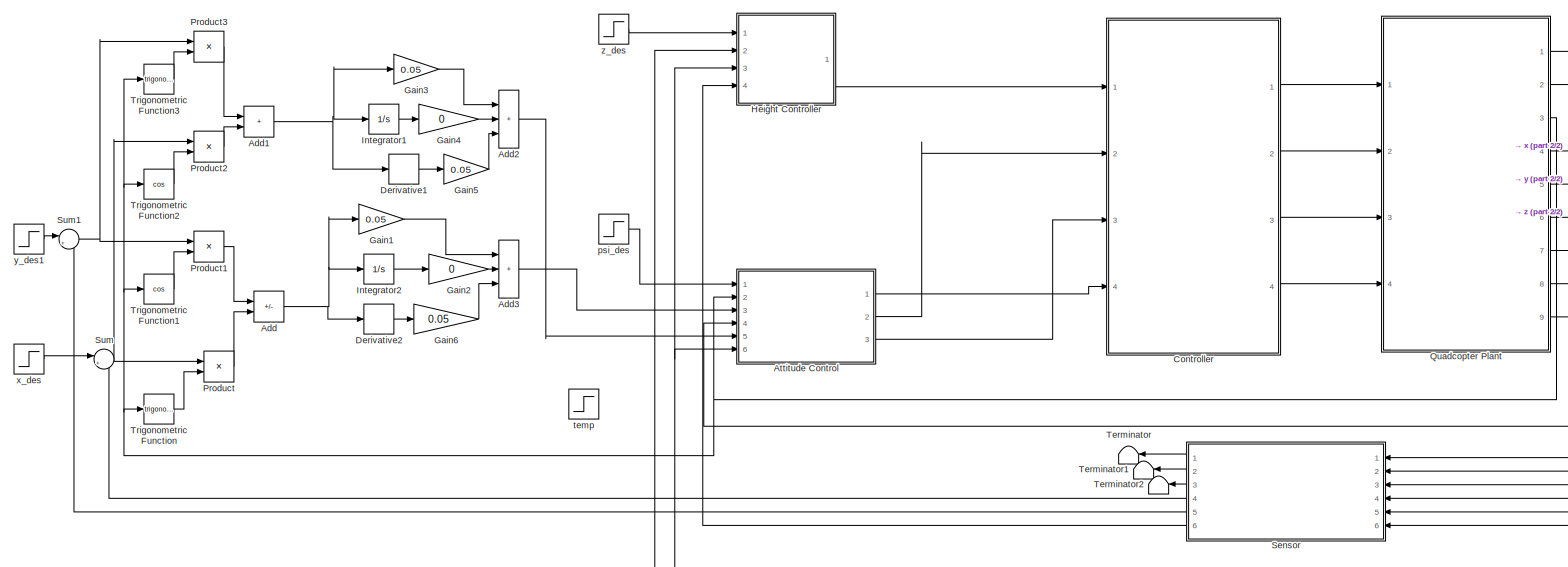
[diagram: root canvas - part 1/2, most of the canvas]
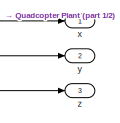
[diagram: root canvas - part 2/2, top right region]
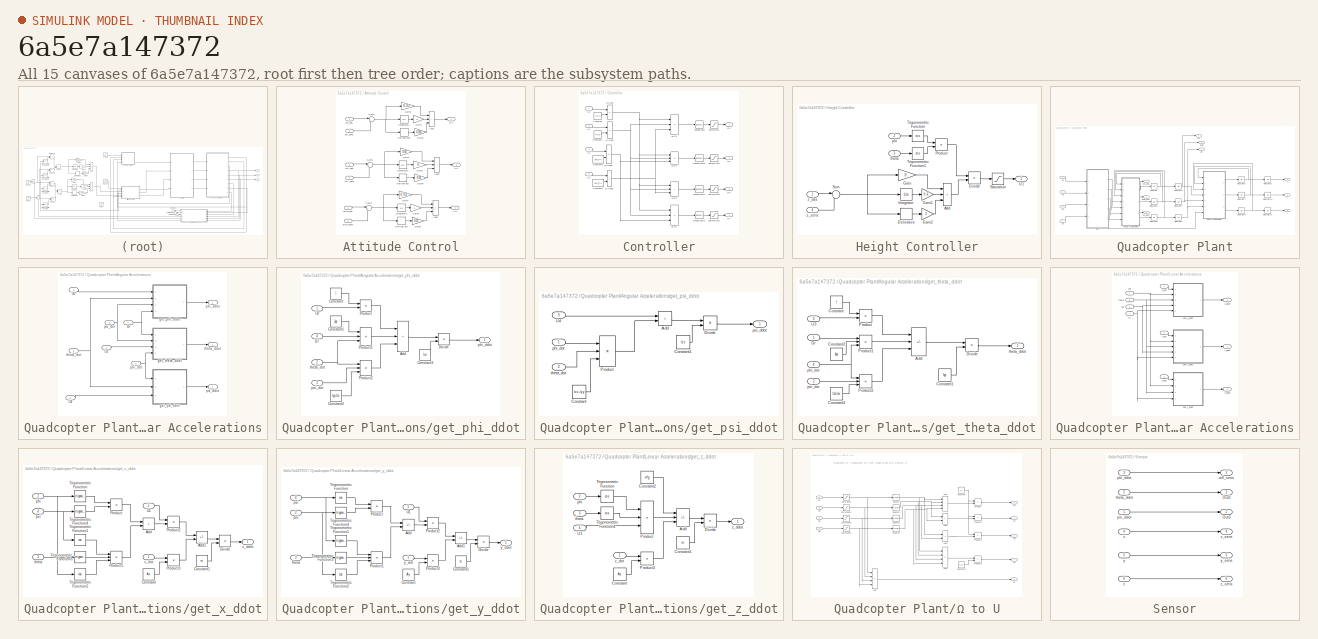
[diagram: thumbnail index - all 15 canvases of the model, root first then tree order]
MODEL slx_6a5e7a147372
KIND model
CONFIG AbsTol = auto
CONFIG EnableMultiTasking = off
CONFIG FixedStep = auto
CONFIG MaxStep = auto
CONFIG MinStep = auto
CONFIG RelTol = 0.001
CONFIG SampleTimeConstraint = Unconstrained
CONFIG Solver = VariableStepAuto
CONFIG SolverName = VariableStepAuto
CONFIG StartTime = 0.0
CONFIG StopTime = 20
BLOCK [Sum] Add
  IconShape = rectangular
  Inputs = -+
  Ports = [2, 1]
BLOCK [Sum] Add1
  IconShape = rectangular
  Ports = [2, 1]
BLOCK [Sum] Add2
  IconShape = rectangular
  Inputs = +++
  Ports = [3, 1]
BLOCK [Sum] Add3
  IconShape = rectangular
  Inputs = +++
  Ports = [3, 1]
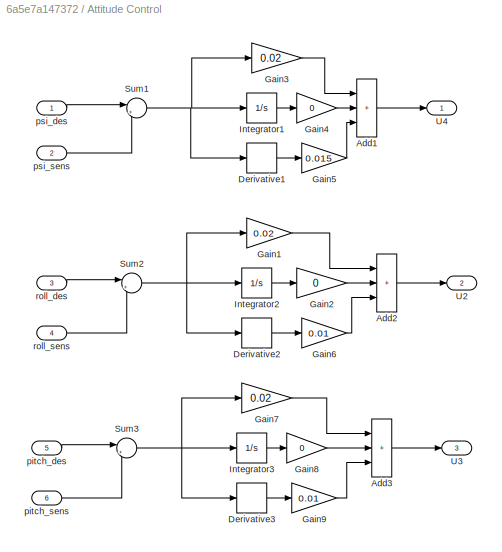
BLOCK [SubSystem] Attitude Control
  Ports = [6, 3]
  RequestExecContextInheritance = off
BLOCK [Sum] Attitude Control/Add1
  IconShape = rectangular
  Inputs = +++
  Ports = [3, 1]
BLOCK [Sum] Attitude Control/Add2
  IconShape = rectangular
  Inputs = +++
  Ports = [3, 1]
BLOCK [Sum] Attitude Control/Add3
  IconShape = rectangular
  Inputs = +++
  Ports = [3, 1]
BLOCK [Derivative] Attitude Control/Derivative1
BLOCK [Derivative] Attitude Control/Derivative2
BLOCK [Derivative] Attitude Control/Derivative3
BLOCK [Gain] Attitude Control/Gain1
  Gain = 0.02
BLOCK [Gain] Attitude Control/Gain2
  Gain = 0
BLOCK [Gain] Attitude Control/Gain3
  Gain = 0.02
BLOCK [Gain] Attitude Control/Gain4
  Gain = 0
BLOCK [Gain] Attitude Control/Gain5
  Gain = 0.015
BLOCK [Gain] Attitude Control/Gain6
  Gain = 0.01
BLOCK [Gain] Attitude Control/Gain7
  Gain = 0.02
BLOCK [Gain] Attitude Control/Gain8
  Gain = 0
BLOCK [Gain] Attitude Control/Gain9
  Gain = 0.01
BLOCK [Integrator] Attitude Control/Integrator1
  Ports = [1, 1]
BLOCK [Integrator] Attitude Control/Integrator2
  Ports = [1, 1]
BLOCK [Integrator] Attitude Control/Integrator3
  Ports = [1, 1]
BLOCK [Sum] Attitude Control/Sum1
  Inputs = |+-
  Ports = [2, 1]
BLOCK [Sum] Attitude Control/Sum2
  Inputs = |+-
  Ports = [2, 1]
BLOCK [Sum] Attitude Control/Sum3
  Inputs = |+-
  Ports = [2, 1]
BLOCK [Outport] Attitude Control/U2
  Port = 2
BLOCK [Outport] Attitude Control/U3
  Port = 3
BLOCK [Outport] Attitude Control/U4
BLOCK [Inport] Attitude Control/pitch_des
  Port = 5
BLOCK [Inport] Attitude Control/pitch_sens
  Port = 6
BLOCK [Inport] Attitude Control/psi_des
BLOCK [Inport] Attitude Control/psi_sens
  Port = 2
BLOCK [Inport] Attitude Control/roll_des
  Port = 3
BLOCK [Inport] Attitude Control/roll_sens
  Port = 4
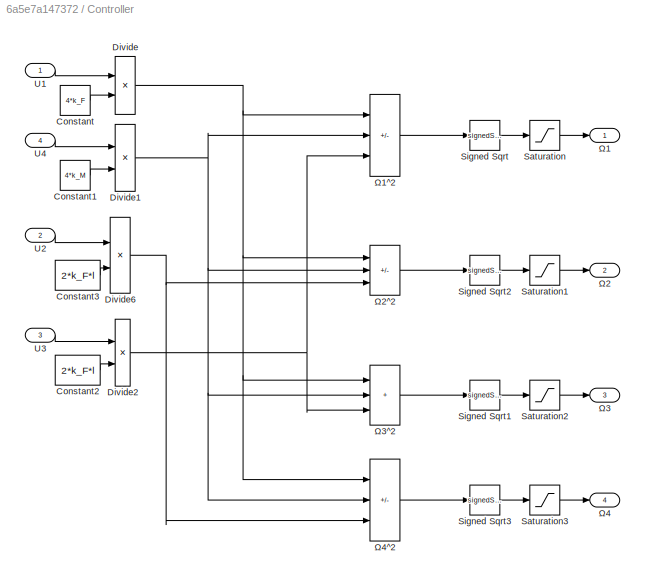
BLOCK [SubSystem] Controller
  Ports = [4, 4]
  RequestExecContextInheritance = off
BLOCK [Constant] Controller/Constant
  Value = 4*k_F
BLOCK [Constant] Controller/Constant1
  Value = 4*k_M
BLOCK [Constant] Controller/Constant2
  Value = 2*k_F*l
BLOCK [Constant] Controller/Constant3
  Value = 2*k_F*l
BLOCK [Product] Controller/Divide
  Inputs = */
  Ports = [2, 1]
BLOCK [Product] Controller/Divide1
  Inputs = */
  Ports = [2, 1]
BLOCK [Product] Controller/Divide2
  Inputs = */
  Ports = [2, 1]
BLOCK [Product] Controller/Divide6
  Inputs = */
  Ports = [2, 1]
BLOCK [Saturate] Controller/Saturation
  LowerLimit = 0
  UpperLimit = 10000
BLOCK [Saturate] Controller/Saturation1
  LowerLimit = 0
  UpperLimit = 10000
BLOCK [Saturate] Controller/Saturation2
  LowerLimit = 0
  UpperLimit = 10000
BLOCK [Saturate] Controller/Saturation3
  LowerLimit = 0
  UpperLimit = 10000
BLOCK [Sqrt] Controller/Signed Sqrt
  Operator = signedSqrt
BLOCK [Sqrt] Controller/Signed Sqrt1
  Operator = signedSqrt
BLOCK [Sqrt] Controller/Signed Sqrt2
  Operator = signedSqrt
BLOCK [Sqrt] Controller/Signed Sqrt3
  Operator = signedSqrt
BLOCK [Inport] Controller/U1
BLOCK [Inport] Controller/U2
  Port = 2
BLOCK [Inport] Controller/U3
  Port = 3
BLOCK [Inport] Controller/U4
  Port = 4
BLOCK [Outport] Controller/Ω1
BLOCK [Sum] Controller/Ω1^2
  IconShape = rectangular
  Inputs = ++-
  Ports = [3, 1]
BLOCK [Outport] Controller/Ω2
  Port = 2
BLOCK [Sum] Controller/Ω2^2
  IconShape = rectangular
  Inputs = +-+
  Ports = [3, 1]
BLOCK [Outport] Controller/Ω3
  Port = 3
BLOCK [Sum] Controller/Ω3^2
  IconShape = rectangular
  Inputs = +++
  Ports = [3, 1]
BLOCK [Outport] Controller/Ω4
  Port = 4
BLOCK [Sum] Controller/Ω4^2
  IconShape = rectangular
  Inputs = +--
  Ports = [3, 1]
BLOCK [Derivative] Derivative1
BLOCK [Derivative] Derivative2
BLOCK [Gain] Gain1
  Gain = 0.05
BLOCK [Gain] Gain2
  Gain = 0
BLOCK [Gain] Gain3
  Gain = 0.05
BLOCK [Gain] Gain4
  Gain = 0
BLOCK [Gain] Gain5
  Gain = 0.05
BLOCK [Gain] Gain6
  Gain = 0.05
BLOCK [SubSystem] Height Controller
  Ports = [4, 1]
  RequestExecContextInheritance = off
BLOCK [Sum] Height Controller/Add
  IconShape = rectangular
  Inputs = +++
  Ports = [3, 1]
BLOCK [Derivative] Height Controller/Derivative
BLOCK [Product] Height Controller/Divide
  Inputs = /*
  Ports = [2, 1]
BLOCK [Gain] Height Controller/Gain
  Gain = 3
BLOCK [Gain] Height Controller/Gain1
  Gain = 0.6
BLOCK [Gain] Height Controller/Gain2
  Gain = 2
BLOCK [Integrator] Height Controller/Integrator
  Ports = [1, 1]
BLOCK [Product] Height Controller/Product
  Ports = [2, 1]
BLOCK [Saturate] Height Controller/Saturation
  LowerLimit = 0
  UpperLimit = inf
BLOCK [Sum] Height Controller/Sum
  Inputs = |+-
  Ports = [2, 1]
BLOCK [Trigonometry] Height Controller/Trigonometric Function
  Operator = cos
  Ports = [1, 1]
BLOCK [Trigonometry] Height Controller/Trigonometric Function1
  Operator = cos
  Ports = [1, 1]
BLOCK [Outport] Height Controller/U1
BLOCK [Inport] Height Controller/phi
  Port = 2
BLOCK [Inport] Height Controller/theta
  Port = 3
BLOCK [Inport] Height Controller/z_des
BLOCK [Inport] Height Controller/z_sens
  Port = 4
BLOCK [Integrator] Integrator1
  Ports = [1, 1]
BLOCK [Integrator] Integrator2
  Ports = [1, 1]
BLOCK [Product] Product
  Ports = [2, 1]
BLOCK [Product] Product1
  Ports = [2, 1]
BLOCK [Product] Product2
  Ports = [2, 1]
BLOCK [Product] Product3
  Ports = [2, 1]
BLOCK [SubSystem] Quadcopter Plant
  Ports = [4, 9]
  RequestExecContextInheritance = off
BLOCK [SubSystem] Quadcopter Plant/Angular Accelerations
  Ports = [7, 3]
  RequestExecContextInheritance = off
BLOCK [Inport] Quadcopter Plant/Angular Accelerations/U2
  Port = 4
BLOCK [Inport] Quadcopter Plant/Angular Accelerations/U3
  Port = 5
BLOCK [Inport] Quadcopter Plant/Angular Accelerations/U4
  Port = 6
BLOCK [SubSystem] Quadcopter Plant/Angular Accelerations/get_phi_ddot
  Ports = [4, 1]
  RequestExecContextInheritance = off
BLOCK [Sum] Quadcopter Plant/Angular Accelerations/get_phi_ddot/Add
  IconShape = rectangular
  Inputs = +++
  Ports = [3, 1]
BLOCK [Constant] Quadcopter Plant/Angular Accelerations/get_phi_ddot/Constant
  Value = l
BLOCK [Constant] Quadcopter Plant/Angular Accelerations/get_phi_ddot/Constant1
  Value = Jyy
BLOCK [Constant] Quadcopter Plant/Angular Accelerations/get_phi_ddot/Constant2
  Value = Iyy-Izz
BLOCK [Constant] Quadcopter Plant/Angular Accelerations/get_phi_ddot/Constant3
  Value = Ixx
BLOCK [Product] Quadcopter Plant/Angular Accelerations/get_phi_ddot/Divide
  Inputs = */
  Ports = [2, 1]
BLOCK [Product] Quadcopter Plant/Angular Accelerations/get_phi_ddot/Product
  Ports = [2, 1]
BLOCK [Product] Quadcopter Plant/Angular Accelerations/get_phi_ddot/Product1
  Inputs = 3
  Ports = [3, 1]
BLOCK [Product] Quadcopter Plant/Angular Accelerations/get_phi_ddot/Product2
  Inputs = 3
  Ports = [3, 1]
BLOCK [Inport] Quadcopter Plant/Angular Accelerations/get_phi_ddot/U2
BLOCK [Outport] Quadcopter Plant/Angular Accelerations/get_phi_ddot/phi_ddot
BLOCK [Inport] Quadcopter Plant/Angular Accelerations/get_phi_ddot/psi_dot
  Port = 3
BLOCK [Inport] Quadcopter Plant/Angular Accelerations/get_phi_ddot/theta_dot
  Port = 2
BLOCK [Inport] Quadcopter Plant/Angular Accelerations/get_phi_ddot/Ωr
  Port = 4
BLOCK [SubSystem] Quadcopter Plant/Angular Accelerations/get_psi_ddot
  Ports = [3, 1]
  RequestExecContextInheritance = off
BLOCK [Sum] Quadcopter Plant/Angular Accelerations/get_psi_ddot/Add
  IconShape = rectangular
  Ports = [2, 1]
BLOCK [Constant] Quadcopter Plant/Angular Accelerations/get_psi_ddot/Constant
  Value = Ixx-Iyy
BLOCK [Constant] Quadcopter Plant/Angular Accelerations/get_psi_ddot/Constant1
  Value = Izz
BLOCK [Product] Quadcopter Plant/Angular Accelerations/get_psi_ddot/Divide
  Inputs = */
  Ports = [2, 1]
BLOCK [Product] Quadcopter Plant/Angular Accelerations/get_psi_ddot/Product
  Inputs = 3
  Ports = [3, 1]
BLOCK [Inport] Quadcopter Plant/Angular Accelerations/get_psi_ddot/U4
  Port = 3
BLOCK [Inport] Quadcopter Plant/Angular Accelerations/get_psi_ddot/phi_dot
BLOCK [Outport] Quadcopter Plant/Angular Accelerations/get_psi_ddot/psi_ddot
BLOCK [Inport] Quadcopter Plant/Angular Accelerations/get_psi_ddot/theta_dot
  Port = 2
BLOCK [SubSystem] Quadcopter Plant/Angular Accelerations/get_theta_ddot
  Ports = [4, 1]
  RequestExecContextInheritance = off
BLOCK [Sum] Quadcopter Plant/Angular Accelerations/get_theta_ddot/Add
  IconShape = rectangular
  Inputs = +-+
  Ports = [3, 1]
BLOCK [Constant] Quadcopter Plant/Angular Accelerations/get_theta_ddot/Constant
  Value = l
BLOCK [Constant] Quadcopter Plant/Angular Accelerations/get_theta_ddot/Constant1
  Value = Iyy
BLOCK [Constant] Quadcopter Plant/Angular Accelerations/get_theta_ddot/Constant2
  Value = Jyy
BLOCK [Constant] Quadcopter Plant/Angular Accelerations/get_theta_ddot/Constant3
  Value = Izz-Ixx
BLOCK [Product] Quadcopter Plant/Angular Accelerations/get_theta_ddot/Divide
  Inputs = */
  Ports = [2, 1]
BLOCK [Product] Quadcopter Plant/Angular Accelerations/get_theta_ddot/Product
  Ports = [2, 1]
BLOCK [Product] Quadcopter Plant/Angular Accelerations/get_theta_ddot/Product1
  Inputs = 3
  Ports = [3, 1]
BLOCK [Product] Quadcopter Plant/Angular Accelerations/get_theta_ddot/Product2
  Inputs = 3
  Ports = [3, 1]
BLOCK [Inport] Quadcopter Plant/Angular Accelerations/get_theta_ddot/U3
  Port = 3
BLOCK [Inport] Quadcopter Plant/Angular Accelerations/get_theta_ddot/phi_dot
  Port = 4
BLOCK [Inport] Quadcopter Plant/Angular Accelerations/get_theta_ddot/psi_dot
  Port = 2
BLOCK [Outport] Quadcopter Plant/Angular Accelerations/get_theta_ddot/theta_ddot
BLOCK [Inport] Quadcopter Plant/Angular Accelerations/get_theta_ddot/Ωr
BLOCK [Outport] Quadcopter Plant/Angular Accelerations/phi_ddot
BLOCK [Inport] Quadcopter Plant/Angular Accelerations/phi_dot
BLOCK [Outport] Quadcopter Plant/Angular Accelerations/psi_ddot
  Port = 3
BLOCK [Inport] Quadcopter Plant/Angular Accelerations/psi_dot
  Port = 3
BLOCK [Outport] Quadcopter Plant/Angular Accelerations/theta_ddot
  Port = 2
BLOCK [Inport] Quadcopter Plant/Angular Accelerations/theta_dot
  Port = 2
BLOCK [Inport] Quadcopter Plant/Angular Accelerations/Ωr
  Port = 7
BLOCK [Integrator] Quadcopter Plant/Integrator
  Ports = [1, 1]
BLOCK [Integrator] Quadcopter Plant/Integrator1
  Ports = [1, 1]
BLOCK [Integrator] Quadcopter Plant/Integrator10
  Ports = [1, 1]
BLOCK [Integrator] Quadcopter Plant/Integrator11
  LimitOutput = on
  LowerSaturationLimit = 0
  Ports = [1, 1]
BLOCK [Integrator] Quadcopter Plant/Integrator2
  Ports = [1, 1]
BLOCK [Integrator] Quadcopter Plant/Integrator3
  Ports = [1, 1]
  WrapState = on
BLOCK [Integrator] Quadcopter Plant/Integrator4
  Ports = [1, 1]
  WrapState = on
BLOCK [Integrator] Quadcopter Plant/Integrator5
  Ports = [1, 1]
  WrapState = on
BLOCK [Integrator] Quadcopter Plant/Integrator6
  Ports = [1, 1]
BLOCK [Integrator] Quadcopter Plant/Integrator7
  Ports = [1, 1]
BLOCK [Integrator] Quadcopter Plant/Integrator8
  Ports = [1, 1]
BLOCK [Integrator] Quadcopter Plant/Integrator9
  Ports = [1, 1]
BLOCK [SubSystem] Quadcopter Plant/Linear Accelerations
  Ports = [7, 3]
  RequestExecContextInheritance = off
BLOCK [Inport] Quadcopter Plant/Linear Accelerations/U1
  Port = 7
BLOCK [SubSystem] Quadcopter Plant/Linear Accelerations/get_x_ddot
  Ports = [5, 1]
  RequestExecContextInheritance = off
BLOCK [Sum] Quadcopter Plant/Linear Accelerations/get_x_ddot/Add
  IconShape = rectangular
  Ports = [2, 1]
BLOCK [Sum] Quadcopter Plant/Linear Accelerations/get_x_ddot/Add1
  IconShape = rectangular
  Inputs = +-
  Ports = [2, 1]
BLOCK [Constant] Quadcopter Plant/Linear Accelerations/get_x_ddot/Constant
  Value = Ax
BLOCK [Constant] Quadcopter Plant/Linear Accelerations/get_x_ddot/Constant1
  Value = m
BLOCK [Product] Quadcopter Plant/Linear Accelerations/get_x_ddot/Divide
  Inputs = */
  Ports = [2, 1]
BLOCK [Product] Quadcopter Plant/Linear Accelerations/get_x_ddot/Product
  Ports = [2, 1]
BLOCK [Product] Quadcopter Plant/Linear Accelerations/get_x_ddot/Product1
  Inputs = 3
  Ports = [3, 1]
BLOCK [Product] Quadcopter Plant/Linear Accelerations/get_x_ddot/Product2
  Ports = [2, 1]
BLOCK [Product] Quadcopter Plant/Linear Accelerations/get_x_ddot/Product3
  Ports = [2, 1]
BLOCK [Trigonometry] Quadcopter Plant/Linear Accelerations/get_x_ddot/Trigonometric Function
  Ports = [1, 1]
BLOCK [Trigonometry] Quadcopter Plant/Linear Accelerations/get_x_ddot/Trigonometric Function1
  Operator = cos
  Ports = [1, 1]
BLOCK [Trigonometry] Quadcopter Plant/Linear Accelerations/get_x_ddot/Trigonometric Function2
  Operator = cos
  Ports = [1, 1]
BLOCK [Trigonometry] Quadcopter Plant/Linear Accelerations/get_x_ddot/Trigonometric Function3
  Ports = [1, 1]
BLOCK [Trigonometry] Quadcopter Plant/Linear Accelerations/get_x_ddot/Trigonometric Function4
  Ports = [1, 1]
BLOCK [Inport] Quadcopter Plant/Linear Accelerations/get_x_ddot/U1
  Port = 5
BLOCK [Inport] Quadcopter Plant/Linear Accelerations/get_x_ddot/phi
  Port = 2
BLOCK [Inport] Quadcopter Plant/Linear Accelerations/get_x_ddot/psi
  Port = 4
BLOCK [Inport] Quadcopter Plant/Linear Accelerations/get_x_ddot/theta
  Port = 3
BLOCK [Outport] Quadcopter Plant/Linear Accelerations/get_x_ddot/x_ddot
BLOCK [Inport] Quadcopter Plant/Linear Accelerations/get_x_ddot/x_dot
BLOCK [SubSystem] Quadcopter Plant/Linear Accelerations/get_y_ddot
  Ports = [5, 1]
  RequestExecContextInheritance = off
BLOCK [Sum] Quadcopter Plant/Linear Accelerations/get_y_ddot/Add
  IconShape = rectangular
  Inputs = -+
  Ports = [2, 1]
BLOCK [Sum] Quadcopter Plant/Linear Accelerations/get_y_ddot/Add1
  IconShape = rectangular
  Inputs = +-
  Ports = [2, 1]
BLOCK [Constant] Quadcopter Plant/Linear Accelerations/get_y_ddot/Constant
  Value = Ay
BLOCK [Constant] Quadcopter Plant/Linear Accelerations/get_y_ddot/Constant1
  Value = m
BLOCK [Product] Quadcopter Plant/Linear Accelerations/get_y_ddot/Divide
  Inputs = */
  Ports = [2, 1]
BLOCK [Product] Quadcopter Plant/Linear Accelerations/get_y_ddot/Product
  Ports = [2, 1]
BLOCK [Product] Quadcopter Plant/Linear Accelerations/get_y_ddot/Product1
  Inputs = 3
  Ports = [3, 1]
BLOCK [Product] Quadcopter Plant/Linear Accelerations/get_y_ddot/Product2
  Ports = [2, 1]
BLOCK [Product] Quadcopter Plant/Linear Accelerations/get_y_ddot/Product3
  Ports = [2, 1]
BLOCK [Trigonometry] Quadcopter Plant/Linear Accelerations/get_y_ddot/Trigonometric Function
  Operator = cos
  Ports = [1, 1]
BLOCK [Trigonometry] Quadcopter Plant/Linear Accelerations/get_y_ddot/Trigonometric Function1
  Ports = [1, 1]
BLOCK [Trigonometry] Quadcopter Plant/Linear Accelerations/get_y_ddot/Trigonometric Function2
  Operator = cos
  Ports = [1, 1]
BLOCK [Trigonometry] Quadcopter Plant/Linear Accelerations/get_y_ddot/Trigonometric Function3
  Ports = [1, 1]
BLOCK [Trigonometry] Quadcopter Plant/Linear Accelerations/get_y_ddot/Trigonometric Function4
  Ports = [1, 1]
BLOCK [Inport] Quadcopter Plant/Linear Accelerations/get_y_ddot/U1
  Port = 5
BLOCK [Inport] Quadcopter Plant/Linear Accelerations/get_y_ddot/phi
  Port = 2
BLOCK [Inport] Quadcopter Plant/Linear Accelerations/get_y_ddot/psi
  Port = 4
BLOCK [Inport] Quadcopter Plant/Linear Accelerations/get_y_ddot/theta
  Port = 3
BLOCK [Outport] Quadcopter Plant/Linear Accelerations/get_y_ddot/y_ddot
BLOCK [Inport] Quadcopter Plant/Linear Accelerations/get_y_ddot/y_dot
BLOCK [SubSystem] Quadcopter Plant/Linear Accelerations/get_z_ddot
  Ports = [4, 1]
  RequestExecContextInheritance = off
BLOCK [Sum] Quadcopter Plant/Linear Accelerations/get_z_ddot/Add
  IconShape = rectangular
  Inputs = -+-
  Ports = [3, 1]
BLOCK [Constant] Quadcopter Plant/Linear Accelerations/get_z_ddot/Constant
  Value = Az
BLOCK [Constant] Quadcopter Plant/Linear Accelerations/get_z_ddot/Constant1
  Value = m
BLOCK [Constant] Quadcopter Plant/Linear Accelerations/get_z_ddot/Constant2
  Value = m*g
BLOCK [Product] Quadcopter Plant/Linear Accelerations/get_z_ddot/Divide
  Inputs = */
  Ports = [2, 1]
BLOCK [Product] Quadcopter Plant/Linear Accelerations/get_z_ddot/Product
  Inputs = 3
  Ports = [3, 1]
BLOCK [Product] Quadcopter Plant/Linear Accelerations/get_z_ddot/Product3
  Ports = [2, 1]
BLOCK [Trigonometry] Quadcopter Plant/Linear Accelerations/get_z_ddot/Trigonometric Function
  Operator = cos
  Ports = [1, 1]
BLOCK [Trigonometry] Quadcopter Plant/Linear Accelerations/get_z_ddot/Trigonometric Function4
  Operator = cos
  Ports = [1, 1]
BLOCK [Inport] Quadcopter Plant/Linear Accelerations/get_z_ddot/U1
  Port = 4
BLOCK [Inport] Quadcopter Plant/Linear Accelerations/get_z_ddot/phi
  Port = 2
BLOCK [Inport] Quadcopter Plant/Linear Accelerations/get_z_ddot/theta
  Port = 3
BLOCK [Outport] Quadcopter Plant/Linear Accelerations/get_z_ddot/z_ddot
BLOCK [Inport] Quadcopter Plant/Linear Accelerations/get_z_ddot/z_dot
BLOCK [Inport] Quadcopter Plant/Linear Accelerations/phi
  Port = 4
BLOCK [Inport] Quadcopter Plant/Linear Accelerations/psi
  Port = 6
BLOCK [Inport] Quadcopter Plant/Linear Accelerations/theta
  Port = 5
BLOCK [Outport] Quadcopter Plant/Linear Accelerations/x_ddot
BLOCK [Inport] Quadcopter Plant/Linear Accelerations/x_dot
BLOCK [Outport] Quadcopter Plant/Linear Accelerations/y_ddot
  Port = 2
BLOCK [Inport] Quadcopter Plant/Linear Accelerations/y_dot
  Port = 2
BLOCK [Outport] Quadcopter Plant/Linear Accelerations/z_ddot
  Port = 3
BLOCK [Inport] Quadcopter Plant/Linear Accelerations/z_dot
  Port = 3
BLOCK [Outport] Quadcopter Plant/phi
BLOCK [Outport] Quadcopter Plant/phi_ddot
  Port = 7
BLOCK [Outport] Quadcopter Plant/psi
  Port = 3
BLOCK [Outport] Quadcopter Plant/psi_ddot
  Port = 9
BLOCK [Outport] Quadcopter Plant/theta
  Port = 2
BLOCK [Outport] Quadcopter Plant/theta_ddot
  Port = 8
BLOCK [Outport] Quadcopter Plant/x
  Port = 4
BLOCK [Outport] Quadcopter Plant/y
  Port = 5
BLOCK [Outport] Quadcopter Plant/z
  Port = 6
BLOCK [SubSystem] Quadcopter Plant/Ω to U
  Ports = [4, 5]
  RequestExecContextInheritance = off
BLOCK [Sum] Quadcopter Plant/Ω to U/Add
  IconShape = rectangular
  Inputs = +-+-
  Ports = [4, 1]
BLOCK [Sum] Quadcopter Plant/Ω to U/Add1
  IconShape = rectangular
  Inputs = ++++
  Ports = [4, 1]
BLOCK [Sum] Quadcopter Plant/Ω to U/Add2
  IconShape = rectangular
  Inputs = +-
  Ports = [2, 1]
BLOCK [Sum] Quadcopter Plant/Ω to U/Add3
  IconShape = rectangular
  Inputs = -+
  Ports = [2, 1]
BLOCK [Sum] Quadcopter Plant/Ω to U/Add4
  IconShape = rectangular
  Inputs = +-+-
  Ports = [4, 1]
BLOCK [Constant] Quadcopter Plant/Ω to U/Constant
  Value = k_F
BLOCK [Constant] Quadcopter Plant/Ω to U/Constant1
  Value = k_M
BLOCK [Product] Quadcopter Plant/Ω to U/Product
  Ports = [2, 1]
BLOCK [Product] Quadcopter Plant/Ω to U/Product1
  Ports = [2, 1]
BLOCK [Product] Quadcopter Plant/Ω to U/Product2
  Ports = [2, 1]
BLOCK [Product] Quadcopter Plant/Ω to U/Product3
  Ports = [2, 1]
BLOCK [Saturate] Quadcopter Plant/Ω to U/Saturation
  LowerLimit = 0
  UpperLimit = inf
BLOCK [Saturate] Quadcopter Plant/Ω to U/Saturation1
  LowerLimit = 0
  UpperLimit = inf
BLOCK [Saturate] Quadcopter Plant/Ω to U/Saturation2
  LowerLimit = 0
  UpperLimit = inf
BLOCK [Saturate] Quadcopter Plant/Ω to U/Saturation3
  LowerLimit = 0
  UpperLimit = inf
BLOCK [Math] Quadcopter Plant/Ω to U/Square
  Operator = square
  Ports = [1, 1]
BLOCK [Math] Quadcopter Plant/Ω to U/Square1
  Operator = square
  Ports = [1, 1]
BLOCK [Math] Quadcopter Plant/Ω to U/Square2
  Operator = square
  Ports = [1, 1]
BLOCK [Math] Quadcopter Plant/Ω to U/Square3
  Operator = square
  Ports = [1, 1]
BLOCK [Outport] Quadcopter Plant/Ω to U/U1
  Port = 5
BLOCK [Outport] Quadcopter Plant/Ω to U/U2
BLOCK [Outport] Quadcopter Plant/Ω to U/U3
  Port = 2
BLOCK [Outport] Quadcopter Plant/Ω to U/U4
  Port = 3
BLOCK [Inport] Quadcopter Plant/Ω to U/Ω1
BLOCK [Inport] Quadcopter Plant/Ω to U/Ω2
  Port = 2
BLOCK [Inport] Quadcopter Plant/Ω to U/Ω3
  Port = 3
BLOCK [Inport] Quadcopter Plant/Ω to U/Ω4
  Port = 4
BLOCK [Outport] Quadcopter Plant/Ω to U/Ωr
  Port = 4
BLOCK [Inport] Quadcopter Plant/Ω1
BLOCK [Inport] Quadcopter Plant/Ω2
  Port = 2
BLOCK [Inport] Quadcopter Plant/Ω3
  Port = 3
BLOCK [Inport] Quadcopter Plant/Ω4
  Port = 4
BLOCK [SubSystem] Sensor
  Ports = [6, 6]
  RequestExecContextInheritance = off
BLOCK [Outport] Sensor/Out2
  Port = 2
BLOCK [Outport] Sensor/Out3
BLOCK [Inport] Sensor/phi_ddot
  Port = 3
BLOCK [Inport] Sensor/psi_ddot
BLOCK [Outport] Sensor/roll_sens
  Port = 3
BLOCK [Inport] Sensor/theta_ddot
  Port = 2
BLOCK [Inport] Sensor/x
  Port = 4
BLOCK [Outport] Sensor/x_sens
  Port = 4
BLOCK [Inport] Sensor/y
  Port = 5
BLOCK [Outport] Sensor/y_sens
  Port = 5
BLOCK [Inport] Sensor/z
  Port = 6
BLOCK [Outport] Sensor/z_sens
  Port = 6
BLOCK [Sum] Sum
  Inputs = |+-
  Ports = [2, 1]
BLOCK [Sum] Sum1
  Inputs = |+-
  Ports = [2, 1]
BLOCK [Terminator] Terminator
BLOCK [Terminator] Terminator1
BLOCK [Terminator] Terminator2
BLOCK [Trigonometry] Trigonometric Function
  Ports = [1, 1]
BLOCK [Trigonometry] Trigonometric Function1
  Operator = cos
  Ports = [1, 1]
BLOCK [Trigonometry] Trigonometric Function2
  Operator = cos
  Ports = [1, 1]
BLOCK [Trigonometry] Trigonometric Function3
  Ports = [1, 1]
BLOCK [Step] psi_des
  After = 1.6
  SampleTime = 0
  Time = 0
BLOCK [Step] temp
  After = 0.75
  SampleTime = 0
  Time = 0
BLOCK [Outport] x
BLOCK [Step] x_des
  After = 5
  SampleTime = 0
  Time = 2
BLOCK [Outport] y
  Port = 2
BLOCK [Step] y_des1
  After = 0
  SampleTime = 0
  Time = 0
BLOCK [Outport] z
  Port = 3
BLOCK [Step] z_des
  After = 10
  SampleTime = 0
  Time = 0
ANNOTATION Quadcopter Plant/Ω to U: *Model done for + configuration. For x conf multiply U2 and U3 by b*sin(pi/4) and revide adder blocks
NET Add1:1 -> Derivative1:1, Gain3:1, Integrator1:1
LINE Add2:1 -> Attitude Control:5
LINE Add3:1 -> Attitude Control:3
NET Add:1 -> Derivative2:1, Gain1:1, Integrator2:1
LINE Attitude Control/Add1:1 -> Attitude Control/U4:1
LINE Attitude Control/Add2:1 -> Attitude Control/U2:1
LINE Attitude Control/Add3:1 -> Attitude Control/U3:1
LINE Attitude Control/Derivative1:1 -> Attitude Control/Gain5:1
LINE Attitude Control/Derivative2:1 -> Attitude Control/Gain6:1
LINE Attitude Control/Derivative3:1 -> Attitude Control/Gain9:1
LINE Attitude Control/Gain1:1 -> Attitude Control/Add2:1
LINE Attitude Control/Gain2:1 -> Attitude Control/Add2:2
LINE Attitude Control/Gain3:1 -> Attitude Control/Add1:1
LINE Attitude Control/Gain4:1 -> Attitude Control/Add1:2
LINE Attitude Control/Gain5:1 -> Attitude Control/Add1:3
LINE Attitude Control/Gain6:1 -> Attitude Control/Add2:3
LINE Attitude Control/Gain7:1 -> Attitude Control/Add3:1
LINE Attitude Control/Gain8:1 -> Attitude Control/Add3:2
LINE Attitude Control/Gain9:1 -> Attitude Control/Add3:3
LINE Attitude Control/Integrator1:1 -> Attitude Control/Gain4:1
LINE Attitude Control/Integrator2:1 -> Attitude Control/Gain2:1
LINE Attitude Control/Integrator3:1 -> Attitude Control/Gain8:1
NET Attitude Control/Sum1:1 -> Attitude Control/Derivative1:1, Attitude Control/Gain3:1, Attitude Control/Integrator1:1
NET Attitude Control/Sum2:1 -> Attitude Control/Derivative2:1, Attitude Control/Gain1:1, Attitude Control/Integrator2:1
NET Attitude Control/Sum3:1 -> Attitude Control/Derivative3:1, Attitude Control/Gain7:1, Attitude Control/Integrator3:1
LINE Attitude Control/pitch_des:1 -> Attitude Control/Sum3:1
LINE Attitude Control/pitch_sens:1 -> Attitude Control/Sum3:2
LINE Attitude Control/psi_des:1 -> Attitude Control/Sum1:1
LINE Attitude Control/psi_sens:1 -> Attitude Control/Sum1:2
LINE Attitude Control/roll_des:1 -> Attitude Control/Sum2:1
LINE Attitude Control/roll_sens:1 -> Attitude Control/Sum2:2
LINE Attitude Control:1 -> Controller:4
LINE Attitude Control:2 -> Controller:2
LINE Attitude Control:3 -> Controller:3
LINE Controller/Constant1:1 -> Controller/Divide1:2
LINE Controller/Constant2:1 -> Controller/Divide2:2
LINE Controller/Constant3:1 -> Controller/Divide6:2
LINE Controller/Constant:1 -> Controller/Divide:2
NET Controller/Divide1:1 -> Controller/Ω1^2:2, Controller/Ω2^2:2, Controller/Ω3^2:2, Controller/Ω4^2:2
NET Controller/Divide2:1 -> Controller/Ω1^2:3, Controller/Ω3^2:3
NET Controller/Divide6:1 -> Controller/Ω2^2:3, Controller/Ω4^2:3
NET Controller/Divide:1 -> Controller/Ω1^2:1, Controller/Ω2^2:1, Controller/Ω3^2:1, Controller/Ω4^2:1
LINE Controller/Saturation1:1 -> Controller/Ω2:1
LINE Controller/Saturation2:1 -> Controller/Ω3:1
LINE Controller/Saturation3:1 -> Controller/Ω4:1
LINE Controller/Saturation:1 -> Controller/Ω1:1
LINE Controller/Signed Sqrt1:1 -> Controller/Saturation2:1
LINE Controller/Signed Sqrt2:1 -> Controller/Saturation1:1
LINE Controller/Signed Sqrt3:1 -> Controller/Saturation3:1
LINE Controller/Signed Sqrt:1 -> Controller/Saturation:1
LINE Controller/U1:1 -> Controller/Divide:1
LINE Controller/U2:1 -> Controller/Divide6:1
LINE Controller/U3:1 -> Controller/Divide2:1
LINE Controller/U4:1 -> Controller/Divide1:1
LINE Controller/Ω1^2:1 -> Controller/Signed Sqrt:1
LINE Controller/Ω2^2:1 -> Controller/Signed Sqrt2:1
LINE Controller/Ω3^2:1 -> Controller/Signed Sqrt1:1
LINE Controller/Ω4^2:1 -> Controller/Signed Sqrt3:1
LINE Controller:1 -> Quadcopter Plant:1
LINE Controller:2 -> Quadcopter Plant:2
LINE Controller:3 -> Quadcopter Plant:3
LINE Controller:4 -> Quadcopter Plant:4
LINE Derivative1:1 -> Gain5:1
LINE Derivative2:1 -> Gain6:1
LINE Gain1:1 -> Add3:1
LINE Gain2:1 -> Add3:2
LINE Gain3:1 -> Add2:1
LINE Gain4:1 -> Add2:2
LINE Gain5:1 -> Add2:3
LINE Gain6:1 -> Add3:3
LINE Height Controller/Add:1 -> Height Controller/Divide:2
LINE Height Controller/Derivative:1 -> Height Controller/Gain2:1
LINE Height Controller/Divide:1 -> Height Controller/Saturation:1
LINE Height Controller/Gain1:1 -> Height Controller/Add:2
LINE Height Controller/Gain2:1 -> Height Controller/Add:3
LINE Height Controller/Gain:1 -> Height Controller/Add:1
LINE Height Controller/Integrator:1 -> Height Controller/Gain1:1
LINE Height Controller/Product:1 -> Height Controller/Divide:1
LINE Height Controller/Saturation:1 -> Height Controller/U1:1
NET Height Controller/Sum:1 -> Height Controller/Derivative:1, Height Controller/Gain:1, Height Controller/Integrator:1
LINE Height Controller/Trigonometric Function1:1 -> Height Controller/Product:2
LINE Height Controller/Trigonometric Function:1 -> Height Controller/Product:1
LINE Height Controller/phi:1 -> Height Controller/Trigonometric Function:1
LINE Height Controller/theta:1 -> Height Controller/Trigonometric Function1:1
LINE Height Controller/z_des:1 -> Height Controller/Sum:1
LINE Height Controller/z_sens:1 -> Height Controller/Sum:2
LINE Height Controller:1 -> Controller:1
LINE Integrator1:1 -> Gain4:1
LINE Integrator2:1 -> Gain2:1
LINE Product1:1 -> Add:1
LINE Product2:1 -> Add1:2
LINE Product3:1 -> Add1:1
LINE Product:1 -> Add:2
LINE Quadcopter Plant/Angular Accelerations/U2:1 -> Quadcopter Plant/Angular Accelerations/get_phi_ddot:1
LINE Quadcopter Plant/Angular Accelerations/U3:1 -> Quadcopter Plant/Angular Accelerations/get_theta_ddot:3
LINE Quadcopter Plant/Angular Accelerations/U4:1 -> Quadcopter Plant/Angular Accelerations/get_psi_ddot:3
LINE Quadcopter Plant/Angular Accelerations/get_phi_ddot/Add:1 -> Quadcopter Plant/Angular Accelerations/get_phi_ddot/Divide:1
LINE Quadcopter Plant/Angular Accelerations/get_phi_ddot/Constant1:1 -> Quadcopter Plant/Angular Accelerations/get_phi_ddot/Product1:1
LINE Quadcopter Plant/Angular Accelerations/get_phi_ddot/Constant2:1 -> Quadcopter Plant/Angular Accelerations/get_phi_ddot/Product2:3
LINE Quadcopter Plant/Angular Accelerations/get_phi_ddot/Constant3:1 -> Quadcopter Plant/Angular Accelerations/get_phi_ddot/Divide:2
LINE Quadcopter Plant/Angular Accelerations/get_phi_ddot/Constant:1 -> Quadcopter Plant/Angular Accelerations/get_phi_ddot/Product:1
LINE Quadcopter Plant/Angular Accelerations/get_phi_ddot/Divide:1 -> Quadcopter Plant/Angular Accelerations/get_phi_ddot/phi_ddot:1
LINE Quadcopter Plant/Angular Accelerations/get_phi_ddot/Product1:1 -> Quadcopter Plant/Angular Accelerations/get_phi_ddot/Add:2
LINE Quadcopter Plant/Angular Accelerations/get_phi_ddot/Product2:1 -> Quadcopter Plant/Angular Accelerations/get_phi_ddot/Add:3
LINE Quadcopter Plant/Angular Accelerations/get_phi_ddot/Product:1 -> Quadcopter Plant/Angular Accelerations/get_phi_ddot/Add:1
LINE Quadcopter Plant/Angular Accelerations/get_phi_ddot/U2:1 -> Quadcopter Plant/Angular Accelerations/get_phi_ddot/Product:2
LINE Quadcopter Plant/Angular Accelerations/get_phi_ddot/psi_dot:1 -> Quadcopter Plant/Angular Accelerations/get_phi_ddot/Product2:2
NET Quadcopter Plant/Angular Accelerations/get_phi_ddot/theta_dot:1 -> Quadcopter Plant/Angular Accelerations/get_phi_ddot/Product1:3, Quadcopter Plant/Angular Accelerations/get_phi_ddot/Product2:1
LINE Quadcopter Plant/Angular Accelerations/get_phi_ddot/Ωr:1 -> Quadcopter Plant/Angular Accelerations/get_phi_ddot/Product1:2
LINE Quadcopter Plant/Angular Accelerations/get_phi_ddot:1 -> Quadcopter Plant/Angular Accelerations/phi_ddot:1
LINE Quadcopter Plant/Angular Accelerations/get_psi_ddot/Add:1 -> Quadcopter Plant/Angular Accelerations/get_psi_ddot/Divide:1
LINE Quadcopter Plant/Angular Accelerations/get_psi_ddot/Constant1:1 -> Quadcopter Plant/Angular Accelerations/get_psi_ddot/Divide:2
LINE Quadcopter Plant/Angular Accelerations/get_psi_ddot/Constant:1 -> Quadcopter Plant/Angular Accelerations/get_psi_ddot/Product:3
LINE Quadcopter Plant/Angular Accelerations/get_psi_ddot/Divide:1 -> Quadcopter Plant/Angular Accelerations/get_psi_ddot/psi_ddot:1
LINE Quadcopter Plant/Angular Accelerations/get_psi_ddot/Product:1 -> Quadcopter Plant/Angular Accelerations/get_psi_ddot/Add:2
LINE Quadcopter Plant/Angular Accelerations/get_psi_ddot/U4:1 -> Quadcopter Plant/Angular Accelerations/get_psi_ddot/Add:1
LINE Quadcopter Plant/Angular Accelerations/get_psi_ddot/phi_dot:1 -> Quadcopter Plant/Angular Accelerations/get_psi_ddot/Product:1
LINE Quadcopter Plant/Angular Accelerations/get_psi_ddot/theta_dot:1 -> Quadcopter Plant/Angular Accelerations/get_psi_ddot/Product:2
LINE Quadcopter Plant/Angular Accelerations/get_psi_ddot:1 -> Quadcopter Plant/Angular Accelerations/psi_ddot:1
LINE Quadcopter Plant/Angular Accelerations/get_theta_ddot/Add:1 -> Quadcopter Plant/Angular Accelerations/get_theta_ddot/Divide:1
LINE Quadcopter Plant/Angular Accelerations/get_theta_ddot/Constant1:1 -> Quadcopter Plant/Angular Accelerations/get_theta_ddot/Divide:2
LINE Quadcopter Plant/Angular Accelerations/get_theta_ddot/Constant2:1 -> Quadcopter Plant/Angular Accelerations/get_theta_ddot/Product1:2
LINE Quadcopter Plant/Angular Accelerations/get_theta_ddot/Constant3:1 -> Quadcopter Plant/Angular Accelerations/get_theta_ddot/Product2:3
LINE Quadcopter Plant/Angular Accelerations/get_theta_ddot/Constant:1 -> Quadcopter Plant/Angular Accelerations/get_theta_ddot/Product:1
LINE Quadcopter Plant/Angular Accelerations/get_theta_ddot/Divide:1 -> Quadcopter Plant/Angular Accelerations/get_theta_ddot/theta_ddot:1
LINE Quadcopter Plant/Angular Accelerations/get_theta_ddot/Product1:1 -> Quadcopter Plant/Angular Accelerations/get_theta_ddot/Add:2
LINE Quadcopter Plant/Angular Accelerations/get_theta_ddot/Product2:1 -> Quadcopter Plant/Angular Accelerations/get_theta_ddot/Add:3
LINE Quadcopter Plant/Angular Accelerations/get_theta_ddot/Product:1 -> Quadcopter Plant/Angular Accelerations/get_theta_ddot/Add:1
LINE Quadcopter Plant/Angular Accelerations/get_theta_ddot/U3:1 -> Quadcopter Plant/Angular Accelerations/get_theta_ddot/Product:2
NET Quadcopter Plant/Angular Accelerations/get_theta_ddot/phi_dot:1 -> Quadcopter Plant/Angular Accelerations/get_theta_ddot/Product1:3, Quadcopter Plant/Angular Accelerations/get_theta_ddot/Product2:1
LINE Quadcopter Plant/Angular Accelerations/get_theta_ddot/psi_dot:1 -> Quadcopter Plant/Angular Accelerations/get_theta_ddot/Product2:2
LINE Quadcopter Plant/Angular Accelerations/get_theta_ddot/Ωr:1 -> Quadcopter Plant/Angular Accelerations/get_theta_ddot/Product1:1
LINE Quadcopter Plant/Angular Accelerations/get_theta_ddot:1 -> Quadcopter Plant/Angular Accelerations/theta_ddot:1
NET Quadcopter Plant/Angular Accelerations/phi_dot:1 -> Quadcopter Plant/Angular Accelerations/get_psi_ddot:1, Quadcopter Plant/Angular Accelerations/get_theta_ddot:4
NET Quadcopter Plant/Angular Accelerations/psi_dot:1 -> Quadcopter Plant/Angular Accelerations/get_phi_ddot:3, Quadcopter Plant/Angular Accelerations/get_theta_ddot:2
NET Quadcopter Plant/Angular Accelerations/theta_dot:1 -> Quadcopter Plant/Angular Accelerations/get_phi_ddot:2, Quadcopter Plant/Angular Accelerations/get_psi_ddot:2
NET Quadcopter Plant/Angular Accelerations/Ωr:1 -> Quadcopter Plant/Angular Accelerations/get_phi_ddot:4, Quadcopter Plant/Angular Accelerations/get_theta_ddot:1
NET Quadcopter Plant/Angular Accelerations:1 -> Quadcopter Plant/Integrator:1, Quadcopter Plant/phi_ddot:1
NET Quadcopter Plant/Angular Accelerations:2 -> Quadcopter Plant/Integrator1:1, Quadcopter Plant/theta_ddot:1
NET Quadcopter Plant/Angular Accelerations:3 -> Quadcopter Plant/Integrator2:1, Quadcopter Plant/psi_ddot:1
LINE Quadcopter Plant/Integrator10:1 -> Quadcopter Plant/y:1
LINE Quadcopter Plant/Integrator11:1 -> Quadcopter Plant/z:1
NET Quadcopter Plant/Integrator1:1 -> Quadcopter Plant/Angular Accelerations:2, Quadcopter Plant/Integrator4:1
NET Quadcopter Plant/Integrator2:1 -> Quadcopter Plant/Angular Accelerations:3, Quadcopter Plant/Integrator5:1
NET Quadcopter Plant/Integrator3:1 -> Quadcopter Plant/Linear Accelerations:4, Quadcopter Plant/phi:1
NET Quadcopter Plant/Integrator4:1 -> Quadcopter Plant/Linear Accelerations:5, Quadcopter Plant/theta:1
NET Quadcopter Plant/Integrator5:1 -> Quadcopter Plant/Linear Accelerations:6, Quadcopter Plant/psi:1
NET Quadcopter Plant/Integrator6:1 -> Quadcopter Plant/Integrator9:1, Quadcopter Plant/Linear Accelerations:1
NET Quadcopter Plant/Integrator7:1 -> Quadcopter Plant/Integrator10:1, Quadcopter Plant/Linear Accelerations:2
NET Quadcopter Plant/Integrator8:1 -> Quadcopter Plant/Integrator11:1, Quadcopter Plant/Linear Accelerations:3
LINE Quadcopter Plant/Integrator9:1 -> Quadcopter Plant/x:1
NET Quadcopter Plant/Integrator:1 -> Quadcopter Plant/Angular Accelerations:1, Quadcopter Plant/Integrator3:1
NET Quadcopter Plant/Linear Accelerations/U1:1 -> Quadcopter Plant/Linear Accelerations/get_x_ddot:5, Quadcopter Plant/Linear Accelerations/get_y_ddot:5, Quadcopter Plant/Linear Accelerations/get_z_ddot:4
LINE Quadcopter Plant/Linear Accelerations/get_x_ddot/Add1:1 -> Quadcopter Plant/Linear Accelerations/get_x_ddot/Divide:1
LINE Quadcopter Plant/Linear Accelerations/get_x_ddot/Add:1 -> Quadcopter Plant/Linear Accelerations/get_x_ddot/Product2:2
LINE Quadcopter Plant/Linear Accelerations/get_x_ddot/Constant1:1 -> Quadcopter Plant/Linear Accelerations/get_x_ddot/Divide:2
LINE Quadcopter Plant/Linear Accelerations/get_x_ddot/Constant:1 -> Quadcopter Plant/Linear Accelerations/get_x_ddot/Product3:2
LINE Quadcopter Plant/Linear Accelerations/get_x_ddot/Divide:1 -> Quadcopter Plant/Linear Accelerations/get_x_ddot/x_ddot:1
LINE Quadcopter Plant/Linear Accelerations/get_x_ddot/Product1:1 -> Quadcopter Plant/Linear Accelerations/get_x_ddot/Add:2
LINE Quadcopter Plant/Linear Accelerations/get_x_ddot/Product2:1 -> Quadcopter Plant/Linear Accelerations/get_x_ddot/Add1:1
LINE Quadcopter Plant/Linear Accelerations/get_x_ddot/Product3:1 -> Quadcopter Plant/Linear Accelerations/get_x_ddot/Add1:2
LINE Quadcopter Plant/Linear Accelerations/get_x_ddot/Product:1 -> Quadcopter Plant/Linear Accelerations/get_x_ddot/Add:1
LINE Quadcopter Plant/Linear Accelerations/get_x_ddot/Trigonometric Function1:1 -> Quadcopter Plant/Linear Accelerations/get_x_ddot/Product1:1
LINE Quadcopter Plant/Linear Accelerations/get_x_ddot/Trigonometric Function2:1 -> Quadcopter Plant/Linear Accelerations/get_x_ddot/Product1:3
LINE Quadcopter Plant/Linear Accelerations/get_x_ddot/Trigonometric Function3:1 -> Quadcopter Plant/Linear Accelerations/get_x_ddot/Product1:2
LINE Quadcopter Plant/Linear Accelerations/get_x_ddot/Trigonometric Function4:1 -> Quadcopter Plant/Linear Accelerations/get_x_ddot/Product:2
LINE Quadcopter Plant/Linear Accelerations/get_x_ddot/Trigonometric Function:1 -> Quadcopter Plant/Linear Accelerations/get_x_ddot/Product:1
LINE Quadcopter Plant/Linear Accelerations/get_x_ddot/U1:1 -> Quadcopter Plant/Linear Accelerations/get_x_ddot/Product2:1
NET Quadcopter Plant/Linear Accelerations/get_x_ddot/phi:1 -> Quadcopter Plant/Linear Accelerations/get_x_ddot/Trigonometric Function2:1, Quadcopter Plant/Linear Accelerations/get_x_ddot/Trigonometric Function:1
NET Quadcopter Plant/Linear Accelerations/get_x_ddot/psi:1 -> Quadcopter Plant/Linear Accelerations/get_x_ddot/Trigonometric Function1:1, Quadcopter Plant/Linear Accelerations/get_x_ddot/Trigonometric Function4:1
LINE Quadcopter Plant/Linear Accelerations/get_x_ddot/theta:1 -> Quadcopter Plant/Linear Accelerations/get_x_ddot/Trigonometric Function3:1
LINE Quadcopter Plant/Linear Accelerations/get_x_ddot/x_dot:1 -> Quadcopter Plant/Linear Accelerations/get_x_ddot/Product3:1
LINE Quadcopter Plant/Linear Accelerations/get_x_ddot:1 -> Quadcopter Plant/Linear Accelerations/x_ddot:1
LINE Quadcopter Plant/Linear Accelerations/get_y_ddot/Add1:1 -> Quadcopter Plant/Linear Accelerations/get_y_ddot/Divide:1
LINE Quadcopter Plant/Linear Accelerations/get_y_ddot/Add:1 -> Quadcopter Plant/Linear Accelerations/get_y_ddot/Product2:2
LINE Quadcopter Plant/Linear Accelerations/get_y_ddot/Constant1:1 -> Quadcopter Plant/Linear Accelerations/get_y_ddot/Divide:2
LINE Quadcopter Plant/Linear Accelerations/get_y_ddot/Constant:1 -> Quadcopter Plant/Linear Accelerations/get_y_ddot/Product3:2
LINE Quadcopter Plant/Linear Accelerations/get_y_ddot/Divide:1 -> Quadcopter Plant/Linear Accelerations/get_y_ddot/y_ddot:1
LINE Quadcopter Plant/Linear Accelerations/get_y_ddot/Product1:1 -> Quadcopter Plant/Linear Accelerations/get_y_ddot/Add:2
LINE Quadcopter Plant/Linear Accelerations/get_y_ddot/Product2:1 -> Quadcopter Plant/Linear Accelerations/get_y_ddot/Add1:1
LINE Quadcopter Plant/Linear Accelerations/get_y_ddot/Product3:1 -> Quadcopter Plant/Linear Accelerations/get_y_ddot/Add1:2
LINE Quadcopter Plant/Linear Accelerations/get_y_ddot/Product:1 -> Quadcopter Plant/Linear Accelerations/get_y_ddot/Add:1
LINE Quadcopter Plant/Linear Accelerations/get_y_ddot/Trigonometric Function1:1 -> Quadcopter Plant/Linear Accelerations/get_y_ddot/Product1:1
LINE Quadcopter Plant/Linear Accelerations/get_y_ddot/Trigonometric Function2:1 -> Quadcopter Plant/Linear Accelerations/get_y_ddot/Product1:3
LINE Quadcopter Plant/Linear Accelerations/get_y_ddot/Trigonometric Function3:1 -> Quadcopter Plant/Linear Accelerations/get_y_ddot/Product1:2
LINE Quadcopter Plant/Linear Accelerations/get_y_ddot/Trigonometric Function4:1 -> Quadcopter Plant/Linear Accelerations/get_y_ddot/Product:2
LINE Quadcopter Plant/Linear Accelerations/get_y_ddot/Trigonometric Function:1 -> Quadcopter Plant/Linear Accelerations/get_y_ddot/Product:1
LINE Quadcopter Plant/Linear Accelerations/get_y_ddot/U1:1 -> Quadcopter Plant/Linear Accelerations/get_y_ddot/Product2:1
NET Quadcopter Plant/Linear Accelerations/get_y_ddot/phi:1 -> Quadcopter Plant/Linear Accelerations/get_y_ddot/Trigonometric Function2:1, Quadcopter Plant/Linear Accelerations/get_y_ddot/Trigonometric Function4:1
NET Quadcopter Plant/Linear Accelerations/get_y_ddot/psi:1 -> Quadcopter Plant/Linear Accelerations/get_y_ddot/Trigonometric Function1:1, Quadcopter Plant/Linear Accelerations/get_y_ddot/Trigonometric Function:1
LINE Quadcopter Plant/Linear Accelerations/get_y_ddot/theta:1 -> Quadcopter Plant/Linear Accelerations/get_y_ddot/Trigonometric Function3:1
LINE Quadcopter Plant/Linear Accelerations/get_y_ddot/y_dot:1 -> Quadcopter Plant/Linear Accelerations/get_y_ddot/Product3:1
LINE Quadcopter Plant/Linear Accelerations/get_y_ddot:1 -> Quadcopter Plant/Linear Accelerations/y_ddot:1
LINE Quadcopter Plant/Linear Accelerations/get_z_ddot/Add:1 -> Quadcopter Plant/Linear Accelerations/get_z_ddot/Divide:1
LINE Quadcopter Plant/Linear Accelerations/get_z_ddot/Constant1:1 -> Quadcopter Plant/Linear Accelerations/get_z_ddot/Divide:2
LINE Quadcopter Plant/Linear Accelerations/get_z_ddot/Constant2:1 -> Quadcopter Plant/Linear Accelerations/get_z_ddot/Add:1
LINE Quadcopter Plant/Linear Accelerations/get_z_ddot/Constant:1 -> Quadcopter Plant/Linear Accelerations/get_z_ddot/Product3:2
LINE Quadcopter Plant/Linear Accelerations/get_z_ddot/Divide:1 -> Quadcopter Plant/Linear Accelerations/get_z_ddot/z_ddot:1
LINE Quadcopter Plant/Linear Accelerations/get_z_ddot/Product3:1 -> Quadcopter Plant/Linear Accelerations/get_z_ddot/Add:3
LINE Quadcopter Plant/Linear Accelerations/get_z_ddot/Product:1 -> Quadcopter Plant/Linear Accelerations/get_z_ddot/Add:2
LINE Quadcopter Plant/Linear Accelerations/get_z_ddot/Trigonometric Function4:1 -> Quadcopter Plant/Linear Accelerations/get_z_ddot/Product:2
LINE Quadcopter Plant/Linear Accelerations/get_z_ddot/Trigonometric Function:1 -> Quadcopter Plant/Linear Accelerations/get_z_ddot/Product:1
LINE Quadcopter Plant/Linear Accelerations/get_z_ddot/U1:1 -> Quadcopter Plant/Linear Accelerations/get_z_ddot/Product:3
LINE Quadcopter Plant/Linear Accelerations/get_z_ddot/phi:1 -> Quadcopter Plant/Linear Accelerations/get_z_ddot/Trigonometric Function:1
LINE Quadcopter Plant/Linear Accelerations/get_z_ddot/theta:1 -> Quadcopter Plant/Linear Accelerations/get_z_ddot/Trigonometric Function4:1
LINE Quadcopter Plant/Linear Accelerations/get_z_ddot/z_dot:1 -> Quadcopter Plant/Linear Accelerations/get_z_ddot/Product3:1
LINE Quadcopter Plant/Linear Accelerations/get_z_ddot:1 -> Quadcopter Plant/Linear Accelerations/z_ddot:1
NET Quadcopter Plant/Linear Accelerations/phi:1 -> Quadcopter Plant/Linear Accelerations/get_x_ddot:2, Quadcopter Plant/Linear Accelerations/get_y_ddot:2, Quadcopter Plant/Linear Accelerations/get_z_ddot:2
NET Quadcopter Plant/Linear Accelerations/psi:1 -> Quadcopter Plant/Linear Accelerations/get_x_ddot:4, Quadcopter Plant/Linear Accelerations/get_y_ddot:4
NET Quadcopter Plant/Linear Accelerations/theta:1 -> Quadcopter Plant/Linear Accelerations/get_x_ddot:3, Quadcopter Plant/Linear Accelerations/get_y_ddot:3, Quadcopter Plant/Linear Accelerations/get_z_ddot:3
LINE Quadcopter Plant/Linear Accelerations/x_dot:1 -> Quadcopter Plant/Linear Accelerations/get_x_ddot:1
LINE Quadcopter Plant/Linear Accelerations/y_dot:1 -> Quadcopter Plant/Linear Accelerations/get_y_ddot:1
LINE Quadcopter Plant/Linear Accelerations/z_dot:1 -> Quadcopter Plant/Linear Accelerations/get_z_ddot:1
LINE Quadcopter Plant/Linear Accelerations:1 -> Quadcopter Plant/Integrator6:1
LINE Quadcopter Plant/Linear Accelerations:2 -> Quadcopter Plant/Integrator7:1
LINE Quadcopter Plant/Linear Accelerations:3 -> Quadcopter Plant/Integrator8:1
LINE Quadcopter Plant/Ω to U/Add1:1 -> Quadcopter Plant/Ω to U/Product:2
LINE Quadcopter Plant/Ω to U/Add2:1 -> Quadcopter Plant/Ω to U/Product1:2
LINE Quadcopter Plant/Ω to U/Add3:1 -> Quadcopter Plant/Ω to U/Product2:2
LINE Quadcopter Plant/Ω to U/Add4:1 -> Quadcopter Plant/Ω to U/Product3:1
LINE Quadcopter Plant/Ω to U/Add:1 -> Quadcopter Plant/Ω to U/Ωr:1
LINE Quadcopter Plant/Ω to U/Constant1:1 -> Quadcopter Plant/Ω to U/Product3:2
NET Quadcopter Plant/Ω to U/Constant:1 -> Quadcopter Plant/Ω to U/Product1:1, Quadcopter Plant/Ω to U/Product2:1, Quadcopter Plant/Ω to U/Product:1
LINE Quadcopter Plant/Ω to U/Product1:1 -> Quadcopter Plant/Ω to U/U2:1
LINE Quadcopter Plant/Ω to U/Product2:1 -> Quadcopter Plant/Ω to U/U3:1
LINE Quadcopter Plant/Ω to U/Product3:1 -> Quadcopter Plant/Ω to U/U4:1
LINE Quadcopter Plant/Ω to U/Product:1 -> Quadcopter Plant/Ω to U/U1:1
NET Quadcopter Plant/Ω to U/Saturation1:1 -> Quadcopter Plant/Ω to U/Add:2, Quadcopter Plant/Ω to U/Square1:1
NET Quadcopter Plant/Ω to U/Saturation2:1 -> Quadcopter Plant/Ω to U/Add:3, Quadcopter Plant/Ω to U/Square2:1
NET Quadcopter Plant/Ω to U/Saturation3:1 -> Quadcopter Plant/Ω to U/Add:4, Quadcopter Plant/Ω to U/Square3:1
NET Quadcopter Plant/Ω to U/Saturation:1 -> Quadcopter Plant/Ω to U/Add:1, Quadcopter Plant/Ω to U/Square:1
NET Quadcopter Plant/Ω to U/Square1:1 -> Quadcopter Plant/Ω to U/Add1:2, Quadcopter Plant/Ω to U/Add2:1, Quadcopter Plant/Ω to U/Add4:2
NET Quadcopter Plant/Ω to U/Square2:1 -> Quadcopter Plant/Ω to U/Add1:3, Quadcopter Plant/Ω to U/Add3:2, Quadcopter Plant/Ω to U/Add4:3
NET Quadcopter Plant/Ω to U/Square3:1 -> Quadcopter Plant/Ω to U/Add1:4, Quadcopter Plant/Ω to U/Add2:2, Quadcopter Plant/Ω to U/Add4:4
NET Quadcopter Plant/Ω to U/Square:1 -> Quadcopter Plant/Ω to U/Add1:1, Quadcopter Plant/Ω to U/Add3:1, Quadcopter Plant/Ω to U/Add4:1
LINE Quadcopter Plant/Ω to U/Ω1:1 -> Quadcopter Plant/Ω to U/Saturation:1
LINE Quadcopter Plant/Ω to U/Ω2:1 -> Quadcopter Plant/Ω to U/Saturation1:1
LINE Quadcopter Plant/Ω to U/Ω3:1 -> Quadcopter Plant/Ω to U/Saturation2:1
LINE Quadcopter Plant/Ω to U/Ω4:1 -> Quadcopter Plant/Ω to U/Saturation3:1
LINE Quadcopter Plant/Ω to U:1 -> Quadcopter Plant/Angular Accelerations:4
LINE Quadcopter Plant/Ω to U:2 -> Quadcopter Plant/Angular Accelerations:5
LINE Quadcopter Plant/Ω to U:3 -> Quadcopter Plant/Angular Accelerations:6
LINE Quadcopter Plant/Ω to U:4 -> Quadcopter Plant/Angular Accelerations:7
LINE Quadcopter Plant/Ω to U:5 -> Quadcopter Plant/Linear Accelerations:7
LINE Quadcopter Plant/Ω1:1 -> Quadcopter Plant/Ω to U:1
LINE Quadcopter Plant/Ω2:1 -> Quadcopter Plant/Ω to U:2
LINE Quadcopter Plant/Ω3:1 -> Quadcopter Plant/Ω to U:3
LINE Quadcopter Plant/Ω4:1 -> Quadcopter Plant/Ω to U:4
NET Quadcopter Plant:1 -> Attitude Control:4, Height Controller:2
NET Quadcopter Plant:2 -> Attitude Control:6, Height Controller:3
NET Quadcopter Plant:3 -> Attitude Control:2, Trigonometric Function1:1, Trigonometric Function2:1, Trigonometric Function3:1, Trigonometric Function:1
NET Quadcopter Plant:4 -> Sensor:4, x:1
NET Quadcopter Plant:5 -> Sensor:5, y:1
NET Quadcopter Plant:6 -> Sensor:6, z:1
LINE Quadcopter Plant:7 -> Sensor:3
LINE Quadcopter Plant:8 -> Sensor:2
LINE Quadcopter Plant:9 -> Sensor:1
LINE Sensor/phi_ddot:1 -> Sensor/roll_sens:1
LINE Sensor/psi_ddot:1 -> Sensor/Out3:1
LINE Sensor/theta_ddot:1 -> Sensor/Out2:1
LINE Sensor/x:1 -> Sensor/x_sens:1
LINE Sensor/y:1 -> Sensor/y_sens:1
LINE Sensor/z:1 -> Sensor/z_sens:1
LINE Sensor:1 -> Terminator:1
LINE Sensor:2 -> Terminator1:1
LINE Sensor:3 -> Terminator2:1
LINE Sensor:4 -> Sum:2
LINE Sensor:5 -> Sum1:2
LINE Sensor:6 -> Height Controller:4
NET Sum1:1 -> Product1:1, Product3:1
NET Sum:1 -> Product2:1, Product:1
LINE Trigonometric Function1:1 -> Product1:2
LINE Trigonometric Function2:1 -> Product2:2
LINE Trigonometric Function3:1 -> Product3:2
LINE Trigonometric Function:1 -> Product:2
LINE psi_des:1 -> Attitude Control:1
LINE x_des:1 -> Sum:1
LINE y_des1:1 -> Sum1:1
LINE z_des:1 -> Height Controller:1
note: NET lines group one-source signal fan-out (src -> all destinations, sorted); 1:1 wires keep LINE
